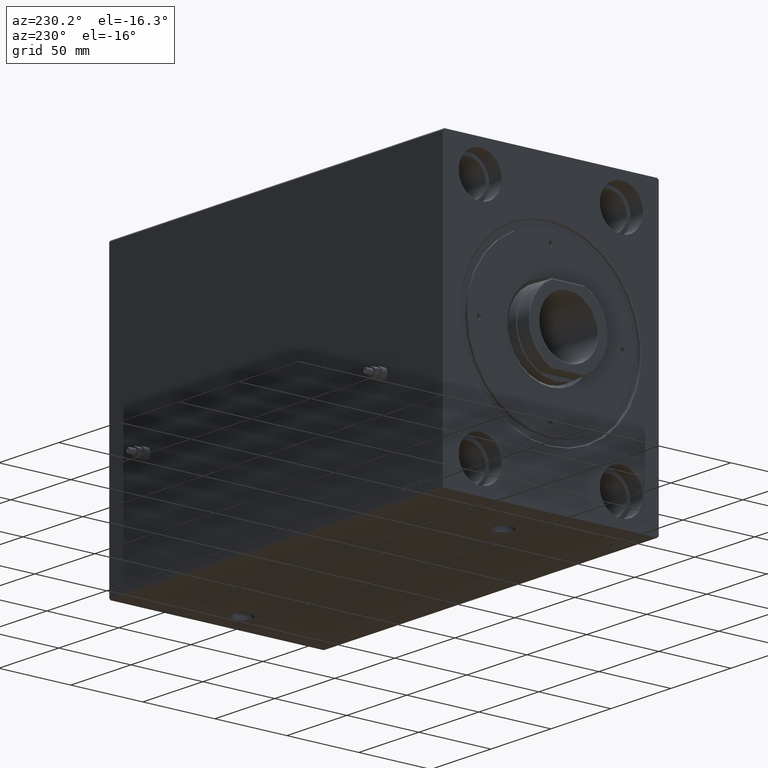
[diagram: clean part render]
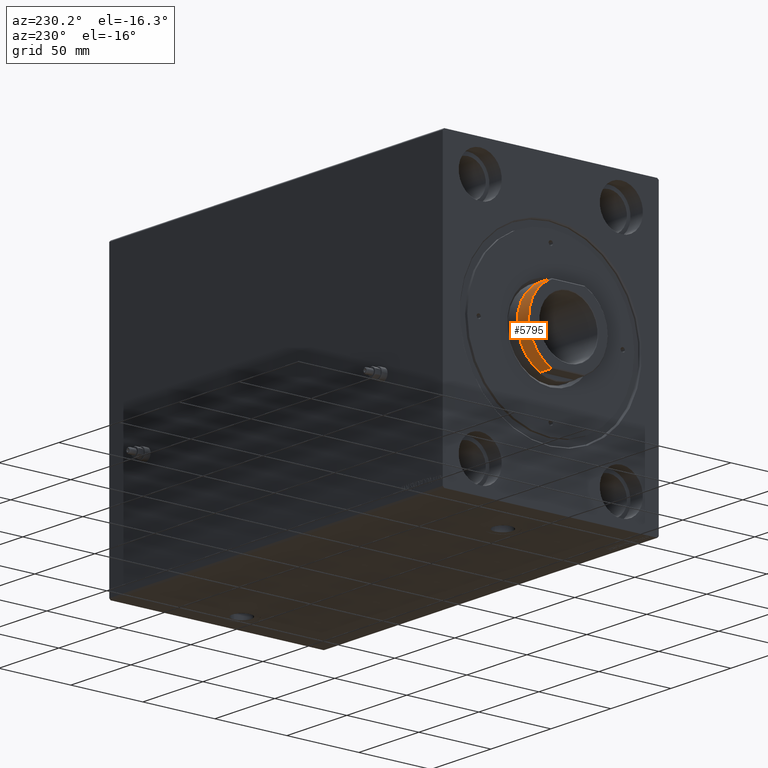
[diagram: same view with one face highlighted and labeled with its STEP entity id]
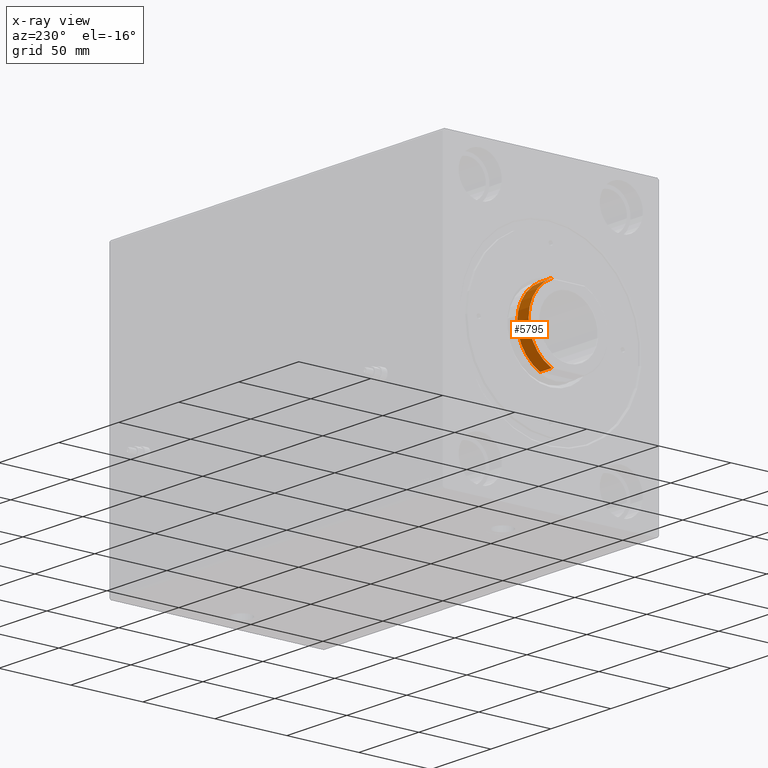
[diagram: x-ray of the same camera — body ghosted, the highlighted face saturated]
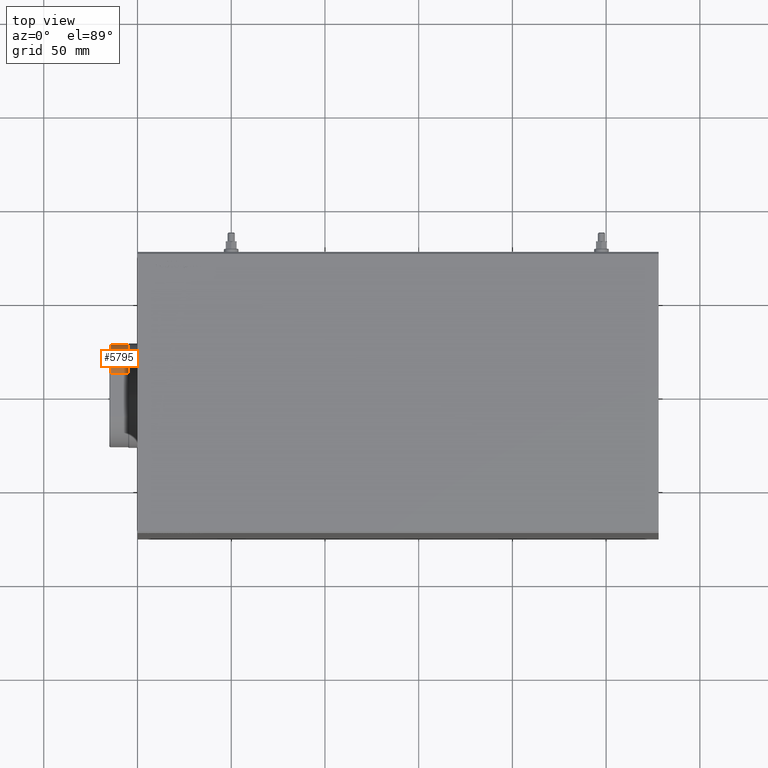
[diagram: same view with one face highlighted and labeled with its STEP entity id]
A machine part, auxiliary view. The second image highlights one B-rep face of the part: STEP entity #5795.
The next image is the same camera in x-ray: the body ghosted, the highlighted face saturated — about 0% of this face is hidden behind the body in this view.
A second angle (top view) of the same face is appended — the face is thin or edge-on in the first view.
In plain terms, the highlighted cylindrical surface (partial cylindrical patch) has radius 27.5 mm, axis along (1, -0, -0).
Its self-contained STEP definition (entity closure, byte-faithful):
#930 = VERTEX_POINT ( 'NONE', #39509 ) ;
#2546 = EDGE_CURVE ( 'NONE', #39722, #930, #43711, .T. ) ;
#3098 = CARTESIAN_POINT ( 'NONE',  ( -25.00000000000000000, 11.45643923738952275, 259.1999999999999886 ) ) ;
#4855 = LINE ( 'NONE', #11485, #37856 ) ;
#5795 = ADVANCED_FACE ( 'NONE', ( #27706 ), #17213, .T. ) ;
#6120 = DIRECTION ( 'NONE',  ( -0.000000000000000000, -0.000000000000000000, -1.000000000000000000 ) ) ;
#7863 = DIRECTION ( 'NONE',  ( 1.000000000000000000, 0.000000000000000000, 0.000000000000000000 ) ) ;
#8141 = EDGE_CURVE ( 'NONE', #37737, #16733, #19764, .T. ) ;
#8296 = DIRECTION ( 'NONE',  ( -0.000000000000000000, -0.000000000000000000, -1.000000000000000000 ) ) ;
#9431 = DIRECTION ( 'NONE',  ( 1.000000000000000000, 0.000000000000000000, 0.000000000000000000 ) ) ;
#11020 = DIRECTION ( 'NONE',  ( -0.000000000000000000, -0.000000000000000000, -1.000000000000000000 ) ) ;
#11485 = CARTESIAN_POINT ( 'NONE',  ( -25.00000000000000000, 11.45643923738952275, 259.6999999999999886 ) ) ;
#16733 = VERTEX_POINT ( 'NONE', #44096 ) ;
#17213 = CYLINDRICAL_SURFACE ( 'NONE', #29197, 27.49999999999996803 ) ;
#17233 = EDGE_LOOP ( 'NONE', ( #33037, #18379, #35189, #33912 ) ) ;
#18379 = ORIENTED_EDGE ( 'NONE', *, *, #2546, .T. ) ;
#19764 = CIRCLE ( 'NONE', #44560, 27.49999999999996803 ) ;
#20401 = CARTESIAN_POINT ( 'NONE',  ( 25.00000000000000000, 11.45643923738952275, 249.6999999999999886 ) ) ;
#23027 = LINE ( 'NONE', #40596, #33293 ) ;
#27706 = FACE_OUTER_BOUND ( 'NONE', #17233, .T. ) ;
#27903 = DIRECTION ( 'NONE',  ( 0.000000000000000000, 0.000000000000000000, 1.000000000000000000 ) ) ;
#28151 = CARTESIAN_POINT ( 'NONE',  ( 0.000000000000000000, 0.000000000000000000, 259.6999999999999886 ) ) ;
#29197 = AXIS2_PLACEMENT_3D ( 'NONE', #28151, #11020, #34987 ) ;
#31885 = EDGE_CURVE ( 'NONE', #930, #37737, #23027, .T. ) ;
#33037 = ORIENTED_EDGE ( 'NONE', *, *, #42678, .F. ) ;
#33293 = VECTOR ( 'NONE', #6120, 1000.000000000000000 ) ;
#33912 = ORIENTED_EDGE ( 'NONE', *, *, #8141, .T. ) ;
#34987 = DIRECTION ( 'NONE',  ( -1.000000000000000000, 0.000000000000000000, 0.000000000000000000 ) ) ;
#35189 = ORIENTED_EDGE ( 'NONE', *, *, #31885, .T. ) ;
#35467 = CARTESIAN_POINT ( 'NONE',  ( 0.000000000000000000, 0.000000000000000000, 259.1999999999999886 ) ) ;
#36380 = AXIS2_PLACEMENT_3D ( 'NONE', #35467, #43229, #7863 ) ;
#36579 = CARTESIAN_POINT ( 'NONE',  ( 0.000000000000000000, 0.000000000000000000, 249.6999999999999886 ) ) ;
#37737 = VERTEX_POINT ( 'NONE', #20401 ) ;
#37856 = VECTOR ( 'NONE', #8296, 1000.000000000000000 ) ;
#39509 = CARTESIAN_POINT ( 'NONE',  ( 25.00000000000000000, 11.45643923738952275, 259.1999999999999886 ) ) ;
#39722 = VERTEX_POINT ( 'NONE', #3098 ) ;
#40596 = CARTESIAN_POINT ( 'NONE',  ( 25.00000000000000000, 11.45643923738952275, 259.6999999999999886 ) ) ;
#42678 = EDGE_CURVE ( 'NONE', #39722, #16733, #4855, .T. ) ;
#43229 = DIRECTION ( 'NONE',  ( 0.000000000000000000, 0.000000000000000000, -1.000000000000000000 ) ) ;
#43711 = CIRCLE ( 'NONE', #36380, 27.49999999999996803 ) ;
#44096 = CARTESIAN_POINT ( 'NONE',  ( -25.00000000000000000, 11.45643923738951919, 249.6999999999999886 ) ) ;
#44560 = AXIS2_PLACEMENT_3D ( 'NONE', #36579, #27903, #9431 ) ;